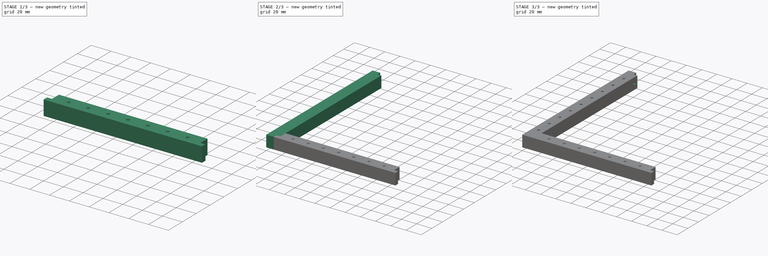
[diagram: build sequence overview — one tinted view per stage of 3, left to right]
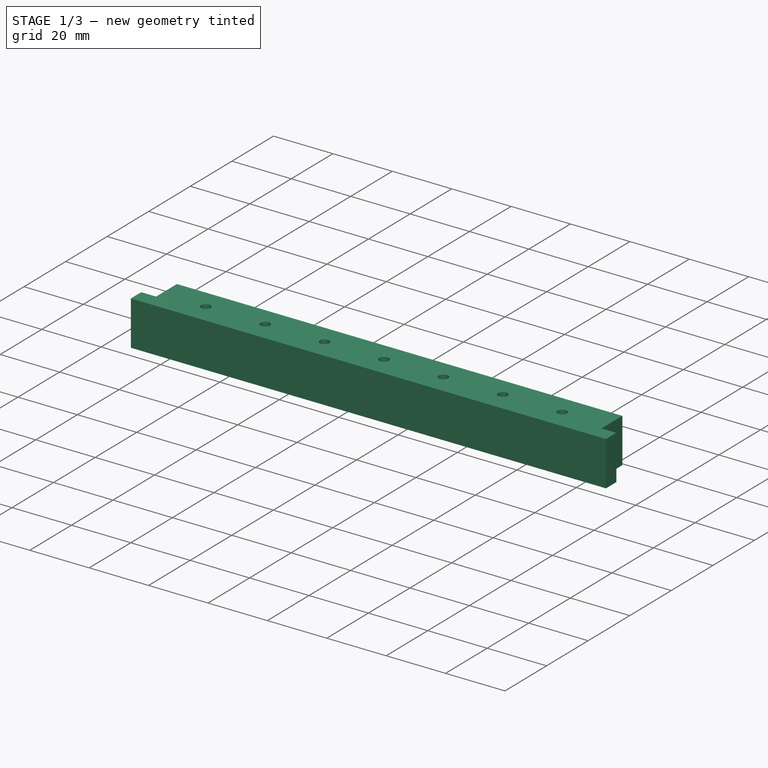
[diagram: stage 1 of 3 — iso view after this stage's code; geometry added in this stage tinted green]
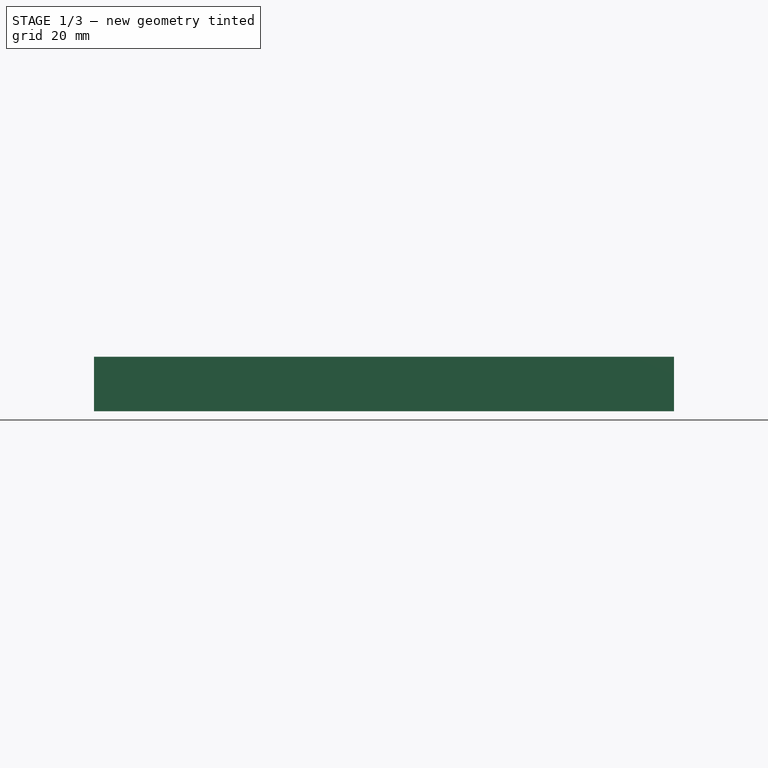
[diagram: stage 1 of 3 — front view after this stage's code; geometry added in this stage tinted green]
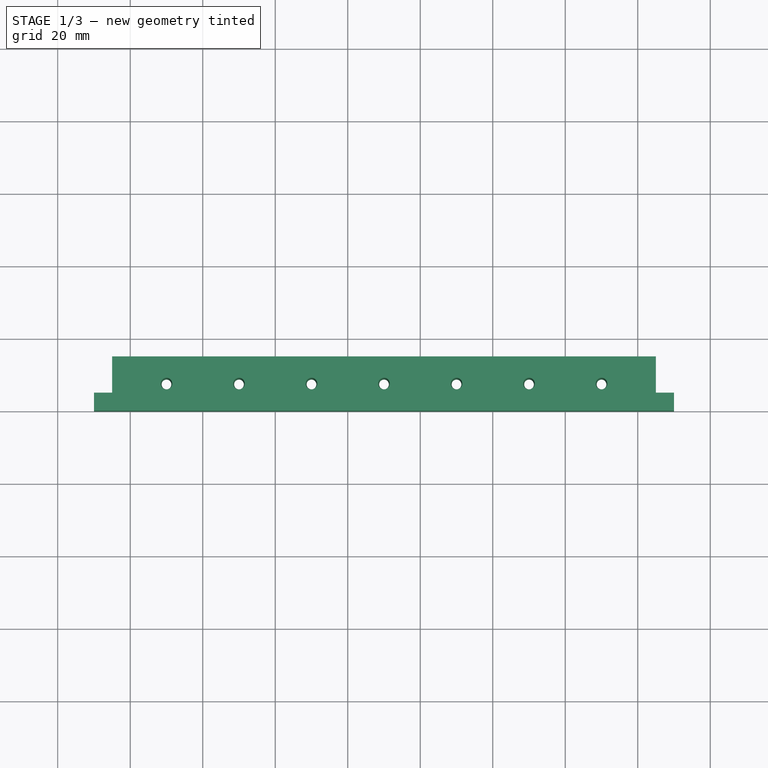
[diagram: stage 1 of 3 — top view after this stage's code; geometry added in this stage tinted green]
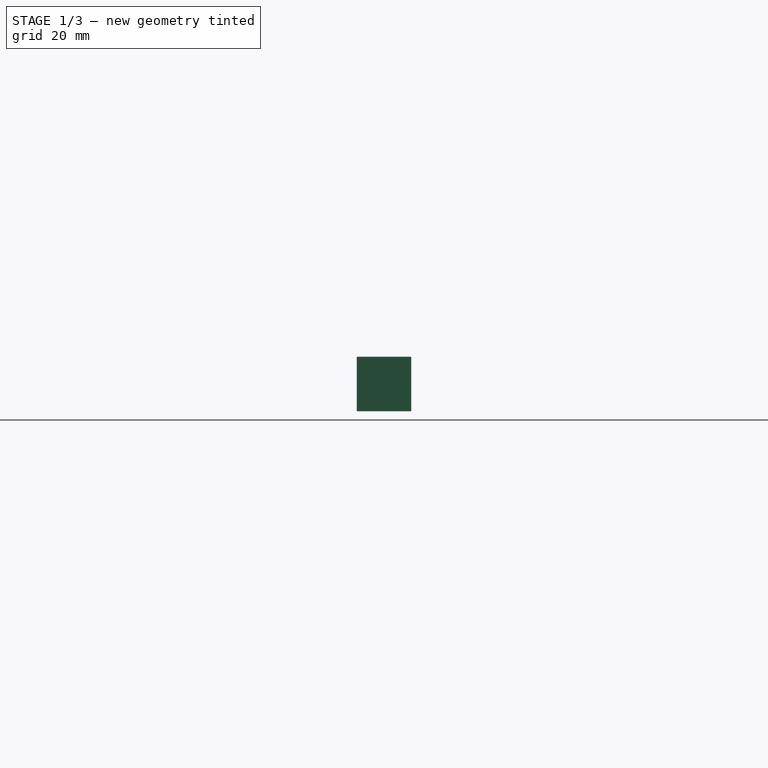
[diagram: stage 1 of 3 — right view after this stage's code; geometry added in this stage tinted green]
FCSTD DOCUMENT  (FreeCAD 1.0R39109 (Git))
Label: Frame
License: All rights reserved
LicenseURL: https://en.wikipedia.org/wiki/All_rights_reserved
objects: Sketcher::SketchObject×7, PartDesign::Hole×5, PartDesign::Pad×2, PartDesign::Body×2
note: 37 computed .brp shape members not serialized (recipe doc carries the construction recipe); baked Part::Feature solids carry a one-line shape summary decoded from their .brp

FEATURE [PartDesign::Body] Body  label="Side_Frame"
  AllowCompound = false
  Group = -> [Sketch,Pad,Sketch001,Hole,Sketch002,Hole001]
  Origin = -> Origin
  Tip = -> Hole001
FEATURE [Sketcher::SketchObject] Sketch003
  ArcFitTolerance = 1e-06
  AttachmentSupport = -> [XY_Plane001]
  FullyConstrained = true
  MakeInternals = false
  MapMode = 5
  sketch-geometry (8):
    g0: LineSegment StartX=10 StartY=-200 StartZ=0 EndX=170 EndY=-200 EndZ=0
    g1: LineSegment StartX=170 StartY=-200 StartZ=0 EndX=170 EndY=-195 EndZ=0
    g2: LineSegment StartX=170 StartY=-195 StartZ=0 EndX=165 EndY=-195 EndZ=0
    g3: LineSegment StartX=165 StartY=-195 StartZ=0 EndX=165 EndY=-185 EndZ=0
    g4: LineSegment StartX=165 StartY=-185 StartZ=0 EndX=15 EndY=-185 EndZ=0
    g5: LineSegment StartX=15 StartY=-185 StartZ=0 EndX=15 EndY=-195 EndZ=0
    g6: LineSegment StartX=15 StartY=-195 StartZ=0 EndX=10 EndY=-195 EndZ=0
    g7: LineSegment StartX=10 StartY=-195 StartZ=0 EndX=10 EndY=-200 EndZ=0
  constraints (24):
    c: Distance(g0) = 160
    c: Horizontal(g0)
    c: Distance(g1) = 5
    c: Vertical(g1)
    c: Coincident(g1,g0)
    c: Distance(g2) = 5
    c: Horizontal(g2)
    c: Coincident(g2,g1)
    c: Distance(g3) = 10
    c: Vertical(g3)
    c: Coincident(g3,g2)
    c: Distance(g4) = 150
    c: Horizontal(g4)
    c: Coincident(g4,g3)
    c: Distance(g5) = 10
    c: Vertical(g5)
    c: Coincident(g5,g4)
    c: Horizontal(g6)
    c: Coincident(g6,g5)
    c: Distance(g0,g-2) = 10
    c: Distance(g0,g-1) = 200
    c: Coincident(g7,g6)
    c: Coincident(g7,g0)
    c: DistanceX(g6,g6) = 5
FEATURE [PartDesign::Pad] Pad001
  Direction = (0,0,1)
  Length = 15
  Length2 = 10
  Profile = -> Sketch003
  ReferenceAxis = -> Sketch003 [N_Axis]
  Refine = true
  Suppressed = false
  Type = 0
FEATURE [Sketcher::SketchObject] Sketch004
  ArcFitTolerance = 1e-06
  AttachmentSupport = -> [Pad001]
  ExternalGeometry = -> [Pad001]
  FullyConstrained = true
  MakeInternals = false
  MapMode = 5
  Placement = pos=(0,0,15) rot=(0,0,1;0rad)
  sketch-geometry (8):
    g0: Circle CenterX=30 CenterY=-192.5 CenterZ=0 NormalX=0 NormalY=0 NormalZ=1 AngleXU=0 Radius=1.5
    g1: Circle CenterX=50 CenterY=-192.5 CenterZ=0 NormalX=0 NormalY=0 NormalZ=1 AngleXU=0 Radius=1.5
    g2: Circle CenterX=70 CenterY=-192.5 CenterZ=0 NormalX=0 NormalY=0 NormalZ=1 AngleXU=0 Radius=1.5
    g3: Circle CenterX=90 CenterY=-192.5 CenterZ=0 NormalX=0 NormalY=0 NormalZ=1 AngleXU=0 Radius=1.5
    g4: Circle CenterX=110 CenterY=-192.5 CenterZ=0 NormalX=0 NormalY=0 NormalZ=1 AngleXU=0 Radius=1.5
    g5: Circle CenterX=130 CenterY=-192.5 CenterZ=0 NormalX=0 NormalY=0 NormalZ=1 AngleXU=0 Radius=1.5
    g6: LineSegment [constr] StartX=30 StartY=-192.5 StartZ=0 EndX=130 EndY=-192.5 EndZ=0
    g7: Circle CenterX=150 CenterY=-192.5 CenterZ=0 NormalX=0 NormalY=0 NormalZ=1 AngleXU=0 Radius=1.5
  constraints (19):
    c: Diameter(g0) = 3
    c: Distance(g0,g-3) = 7.5
    c: Distance(g0,g-4) = 15
    c: Equal(g0, g1-g5) x5
    c: Coincident(g6,g0)
    c: Coincident(g6,g5)
    c: Horizontal(g6)
    c: PointOnObject(g2,g6)
    c: PointOnObject(g3,g6)
    c: PointOnObject(g4,g6)
    c: DistanceX(g0,g1) = 20
    c: DistanceX(g1,g2) = 20
    c: DistanceX(g2,g3) = 20
    c: DistanceX(g3,g4) = 20
    c: DistanceX(g4,g5) = 20
    c: PointOnObject(g1,g6)
    c: Diameter(g7) = 3
    c: DistanceX(g5,g7) = 20
    c: PointOnObject(g7,g6)
FEATURE [PartDesign::Hole] Hole002  label="TopHole002"
  BaseFeature = -> Pad001
  CustomThreadClearance = 0
  Depth = 25
  DepthType = 0
  Diameter = 3.2
  DrillForDepth = false
  DrillPoint = 1
  DrillPointAngle = 118
  HoleCutCountersinkAngle = 90
  HoleCutCustomValues = false
  HoleCutDepth = 0
  HoleCutDiameter = 6.1
  HoleCutType = 0
  ModelThread = false
  Profile = -> Sketch004
  Refine = true
  Suppressed = false
  Tapered = true
  TaperedAngle = 89
  ThreadClass = 0
  ThreadDepth = 25
  ThreadDepthType = 0
  ThreadDirection = 0
  ThreadFit = 1
  ThreadSize = 9
  ThreadType = 1
  Threaded = false
  UseCustomThreadClearance = false
  expr: HoleCutDiameter = 6.1
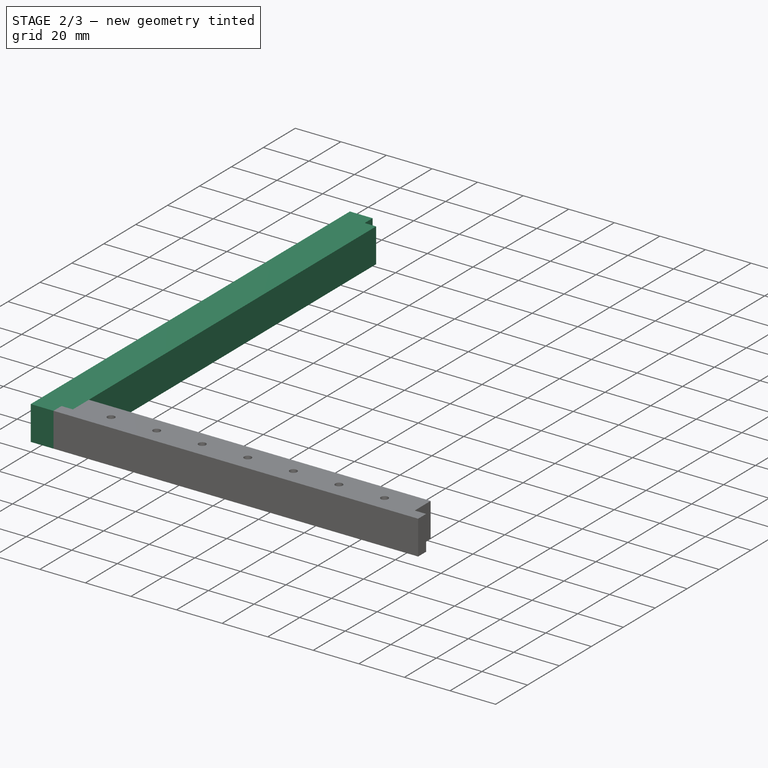
[diagram: stage 2 of 3 — iso view after this stage's code; geometry added in this stage tinted green]
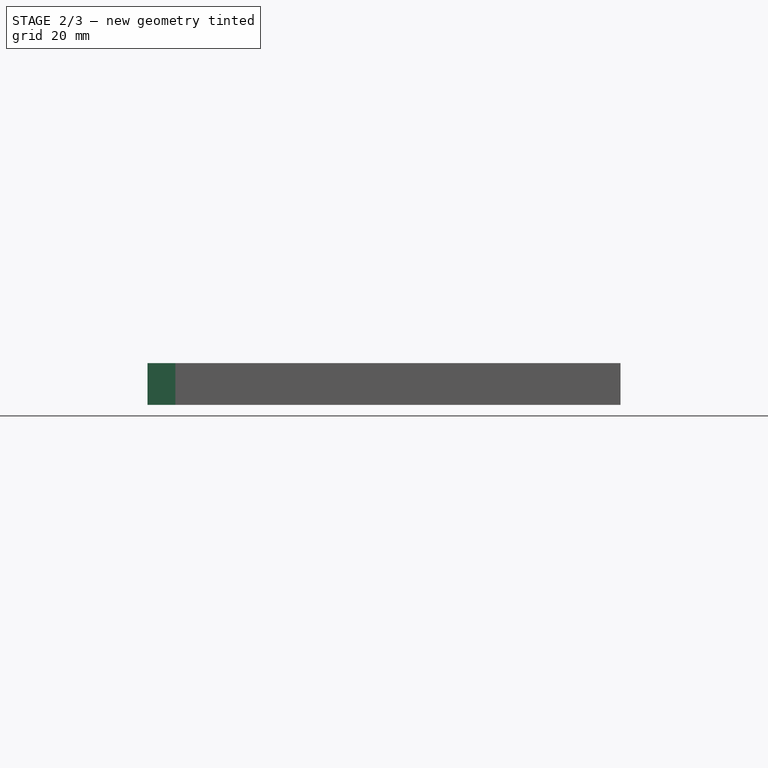
[diagram: stage 2 of 3 — front view after this stage's code; geometry added in this stage tinted green]
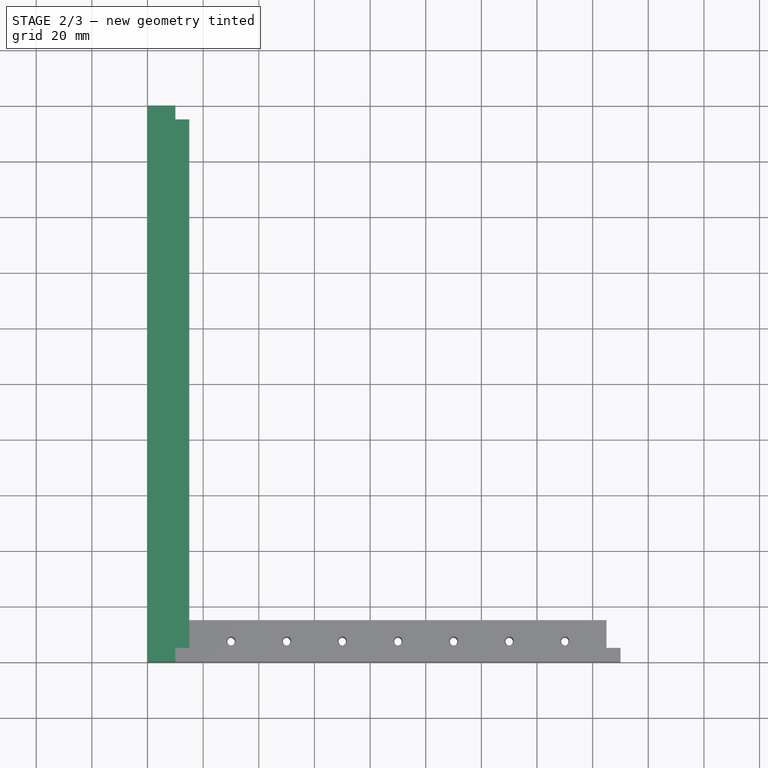
[diagram: stage 2 of 3 — top view after this stage's code; geometry added in this stage tinted green]
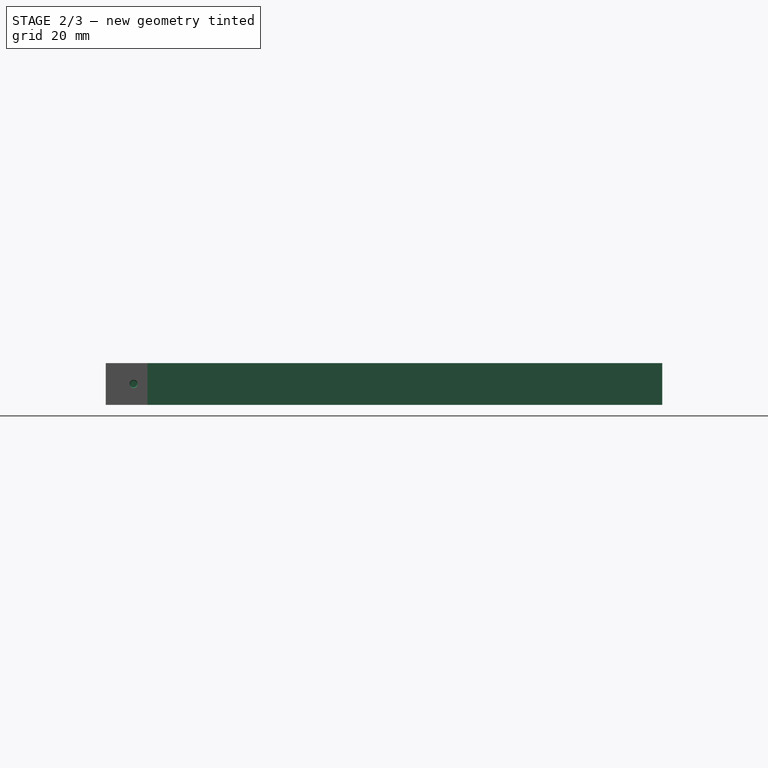
[diagram: stage 2 of 3 — right view after this stage's code; geometry added in this stage tinted green]
FEATURE [Sketcher::SketchObject] Sketch
  ArcFitTolerance = 1e-06
  AttachmentSupport = -> [XY_Plane]
  FullyConstrained = true
  MakeInternals = false
  MapMode = 5
  sketch-geometry (8):
    g0: LineSegment StartX=0 StartY=0 StartZ=0 EndX=0 EndY=-200 EndZ=0
    g1: LineSegment StartX=0 StartY=0 StartZ=0 EndX=10 EndY=0 EndZ=0
    g2: LineSegment StartX=10 StartY=0 StartZ=0 EndX=10 EndY=-5 EndZ=0
    g3: LineSegment StartX=10 StartY=-5 StartZ=0 EndX=15 EndY=-5 EndZ=0
    g4: LineSegment StartX=15 StartY=-5 StartZ=0 EndX=15 EndY=-195 EndZ=0
    g5: LineSegment StartX=15 StartY=-195 StartZ=0 EndX=10 EndY=-195 EndZ=0
    g6: LineSegment StartX=10 StartY=-195 StartZ=0 EndX=10 EndY=-200 EndZ=0
    g7: LineSegment StartX=10 StartY=-200 StartZ=0 EndX=0 EndY=-200 EndZ=0
  constraints (23):
    c: Distance(g0) = 200
    c: Coincident(g0,g-1)
    c: Vertical(g0)
    c: Distance(g1) = 10
    c: Coincident(g1,g0)
    c: PointOnObject(g1,g-1)
    c: Distance(g2) = 5
    c: Coincident(g2,g1)
    c: Vertical(g2)
    c: Distance(g3) = 5
    c: Coincident(g3,g2)
    c: Horizontal(g3)
    c: Distance(g4) = 190
    c: Coincident(g4,g3)
    c: Vertical(g4)
    c: Distance(g5) = 5
    c: Coincident(g5,g4)
    c: Horizontal(g5)
    c: Distance(g6) = 5
    c: Coincident(g6,g5)
    c: Vertical(g6)
    c: Coincident(g7,g6)
    c: Coincident(g7,g0)
FEATURE [PartDesign::Pad] Pad
  Direction = (0,0,1)
  Length = 15
  Length2 = 10
  Profile = -> Sketch
  ReferenceAxis = -> Sketch [N_Axis]
  Refine = true
  Suppressed = false
  Type = 0
FEATURE [Sketcher::SketchObject] Sketch005
  ArcFitTolerance = 1e-06
  AttachmentSupport = -> [Hole002]
  ExternalGeometry = -> [Hole002]
  FullyConstrained = true
  MakeInternals = false
  MapMode = 5
  Placement = pos=(15,0,0) rot=(0.57735,-0.57735,-0.57735;2.0944rad)
  sketch-geometry (1):
    g0: Circle CenterX=190 CenterY=7.5 CenterZ=0 NormalX=0 NormalY=0 NormalZ=1 AngleXU=0 Radius=1.5
  constraints (3):
    c: Diameter(g0) = 3
    c: Distance(g0,g-3) = 7.5
    c: Distance(g0,g-4) = 5
FEATURE [Sketcher::SketchObject] Sketch006
  ArcFitTolerance = 1e-06
  AttachmentSupport = -> [Hole002]
  FullyConstrained = true
  MakeInternals = false
  MapMode = 5
  Placement = pos=(165,0,0) rot=(0.57735,0.57735,0.57735;2.0944rad)
  sketch-geometry (1):
    g0: Circle CenterX=-190 CenterY=7.5 CenterZ=0 NormalX=0 NormalY=0 NormalZ=1 AngleXU=0 Radius=1.5
  constraints (3):
    c: Diameter(g0) = 3
    c: Distance(g0,g-4) = 7.5
    c: Distance(g0,g-3) = 5
FEATURE [PartDesign::Hole] Hole003
  BaseFeature = -> Hole002
  CustomThreadClearance = 0
  Depth = 12
  DepthType = 0
  Diameter = 3
  DrillForDepth = false
  DrillPoint = 1
  DrillPointAngle = 118
  HoleCutCountersinkAngle = 90
  HoleCutCustomValues = false
  HoleCutDepth = 0
  HoleCutDiameter = 6.1
  HoleCutType = 0
  ModelThread = false
  Profile = -> Sketch005
  Refine = true
  Suppressed = false
  Tapered = true
  TaperedAngle = 88.5
  ThreadClass = 0
  ThreadDepth = 12
  ThreadDepthType = 0
  ThreadDirection = 0
  ThreadFit = 1
  ThreadSize = 0
  ThreadType = 0
  Threaded = false
  UseCustomThreadClearance = false
FEATURE [PartDesign::Hole] Hole004
  BaseFeature = -> Hole003
  CustomThreadClearance = 0
  Depth = 12
  DepthType = 0
  Diameter = 3
  DrillForDepth = false
  DrillPoint = 0
  DrillPointAngle = 118
  HoleCutCountersinkAngle = 90
  HoleCutCustomValues = false
  HoleCutDepth = 0
  HoleCutDiameter = 6.3
  HoleCutType = 0
  ModelThread = false
  Profile = -> Sketch006
  Refine = true
  Suppressed = false
  Tapered = true
  TaperedAngle = 88.5
  ThreadClass = 0
  ThreadDepth = 12
  ThreadDepthType = 0
  ThreadDirection = 0
  ThreadFit = 1
  ThreadSize = 0
  ThreadType = 0
  Threaded = false
  UseCustomThreadClearance = false
FEATURE [PartDesign::Body] Body001  label="Body"
  AllowCompound = false
  Group = -> [Sketch003,Pad001,Sketch004,Hole002,Sketch005,Sketch006,Hole003,Hole004]
  Origin = -> Origin001
  Tip = -> Hole004
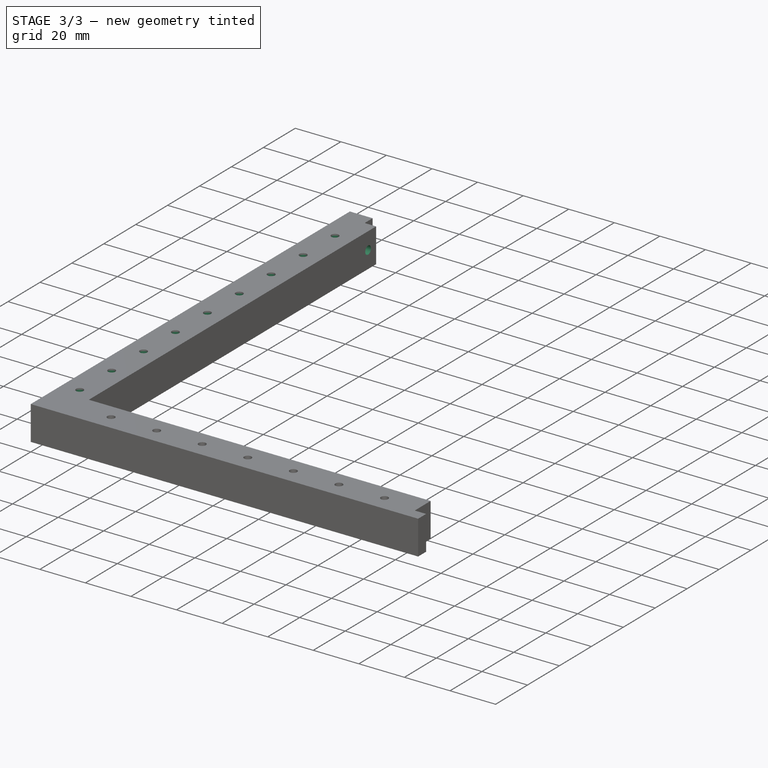
[diagram: stage 3 of 3 — iso view after this stage's code; geometry added in this stage tinted green]
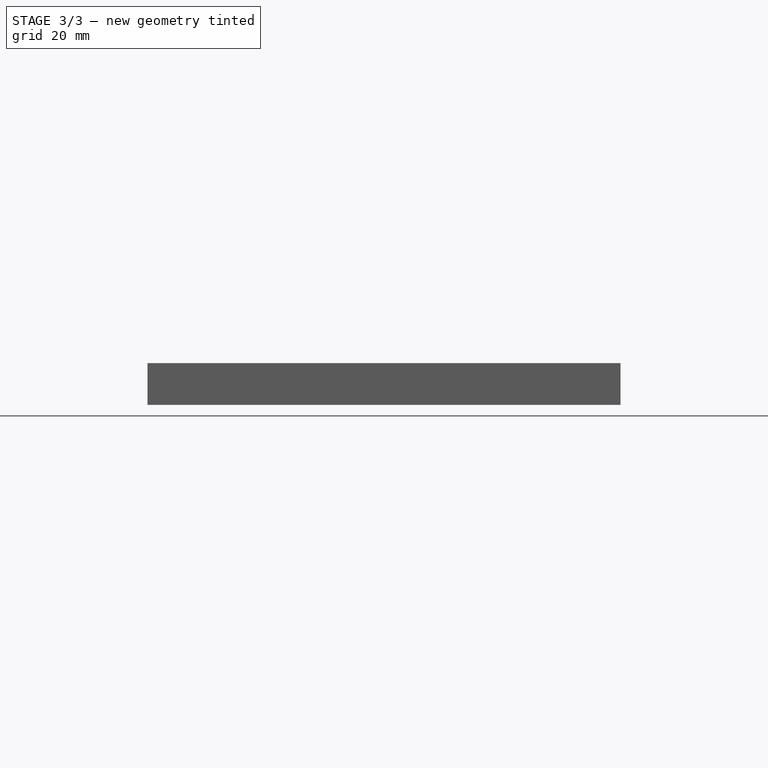
[diagram: stage 3 of 3 — front view after this stage's code; geometry added in this stage tinted green]
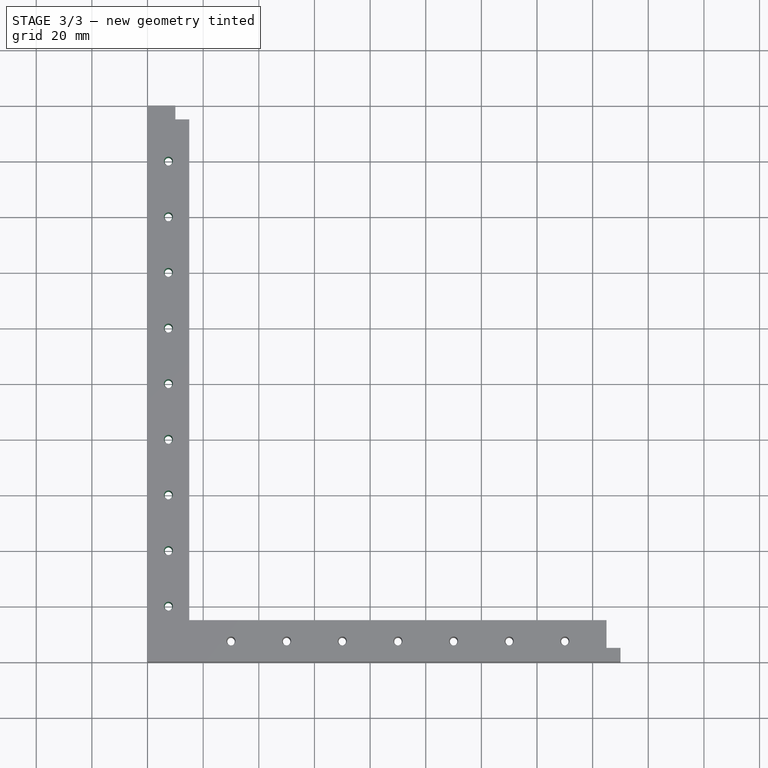
[diagram: stage 3 of 3 — top view after this stage's code; geometry added in this stage tinted green]
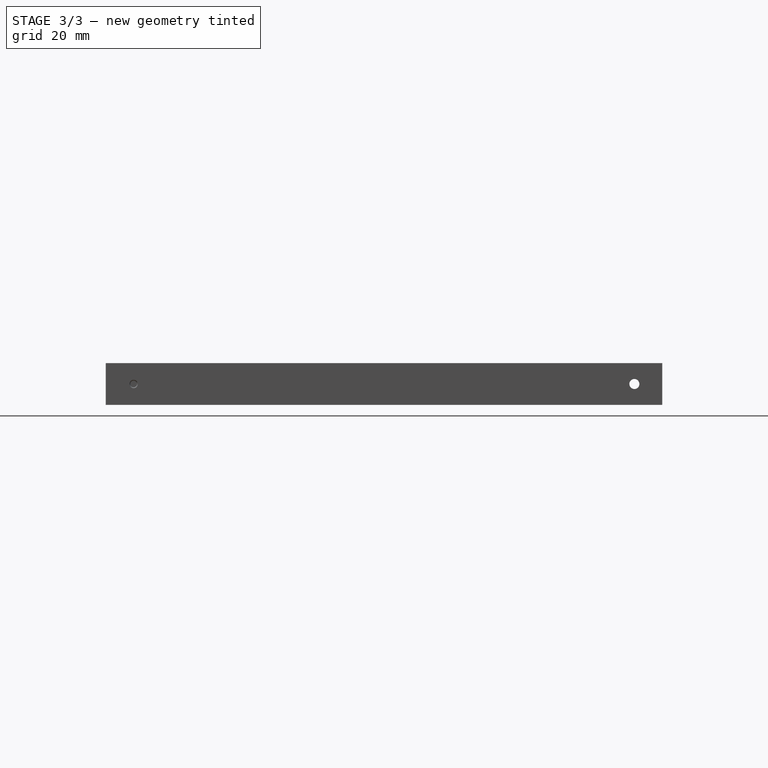
[diagram: stage 3 of 3 — right view after this stage's code; geometry added in this stage tinted green]
FEATURE [Sketcher::SketchObject] Sketch001
  ArcFitTolerance = 1e-06
  AttachmentSupport = -> [Pad]
  FullyConstrained = true
  MakeInternals = false
  MapMode = 5
  Placement = pos=(0,0,15) rot=(0,0,1;0rad)
  sketch-geometry (11):
    g0: LineSegment [constr] StartX=7.5 StartY=0 StartZ=0 EndX=7.5 EndY=-20 EndZ=0
    g1: Circle CenterX=7.5 CenterY=-20 CenterZ=0 NormalX=0 NormalY=0 NormalZ=1 AngleXU=0 Radius=1.6
    g2: Circle CenterX=7.5 CenterY=-40 CenterZ=0 NormalX=0 NormalY=0 NormalZ=1 AngleXU=0 Radius=1.6
    g3: Circle CenterX=7.5 CenterY=-60 CenterZ=0 NormalX=0 NormalY=0 NormalZ=1 AngleXU=0 Radius=1.6
    g4: Circle CenterX=7.5 CenterY=-80 CenterZ=0 NormalX=0 NormalY=0 NormalZ=1 AngleXU=0 Radius=1.6
    g5: Circle CenterX=7.5 CenterY=-100 CenterZ=0 NormalX=0 NormalY=0 NormalZ=1 AngleXU=0 Radius=1.6
    g6: Circle CenterX=7.5 CenterY=-120 CenterZ=0 NormalX=0 NormalY=0 NormalZ=1 AngleXU=0 Radius=1.6
    g7: Circle CenterX=7.5 CenterY=-140 CenterZ=0 NormalX=0 NormalY=0 NormalZ=1 AngleXU=0 Radius=1.6
    g8: Circle CenterX=7.5 CenterY=-160 CenterZ=0 NormalX=0 NormalY=0 NormalZ=1 AngleXU=0 Radius=1.6
    g9: Circle CenterX=7.5 CenterY=-180 CenterZ=0 NormalX=0 NormalY=0 NormalZ=1 AngleXU=0 Radius=1.6
    g10: LineSegment [constr] StartX=7.5 StartY=-20 StartZ=0 EndX=7.5 EndY=-180 EndZ=0
  constraints (32):
    c: Distance(g0) = 20
    c: Vertical(g0)
    c: PointOnObject(g0,g-1)
    c: Diameter(g1) = 3.2
    c: Coincident(g1,g0)
    c: Distance(g-2,g0) = 7.5
    c: Diameter(g2) = 3.2
    c: Diameter(g3) = 3.2
    c: Diameter(g4) = 3.2
    c: Diameter(g5) = 3.2
    c: Diameter(g6) = 3.2
    c: Diameter(g7) = 3.2
    c: Diameter(g8) = 3.2
    c: Diameter(g9) = 3.2
    c: DistanceY(g2,g0) = 20  'screw_offset'
    c: DistanceY(g3,g2) = 20
    c: DistanceY(g4,g3) = 20
    c: DistanceY(g5,g4) = 20
    c: DistanceY(g6,g5) = 20
    c: DistanceY(g7,g6) = 20
    c: DistanceY(g8,g7) = 20
    c: DistanceY(g9,g8) = 20
    c: Coincident(g10,g0)
    c: Coincident(g10,g9)
    c: Vertical(g10)
    c: PointOnObject(g2,g10)
    c: PointOnObject(g3,g10)
    c: PointOnObject(g4,g10)
    c: PointOnObject(g5,g10)
    c: PointOnObject(g6,g10)
    c: PointOnObject(g7,g10)
    c: PointOnObject(g8,g10)
FEATURE [PartDesign::Hole] Hole
  BaseFeature = -> Pad
  CustomThreadClearance = 0
  Depth = 15
  DepthType = 0
  Diameter = 3.2
  DrillForDepth = false
  DrillPoint = 1
  DrillPointAngle = 118
  HoleCutCountersinkAngle = 90
  HoleCutCustomValues = false
  HoleCutDepth = 0
  HoleCutDiameter = 6.1
  HoleCutType = 0
  ModelThread = false
  Profile = -> Sketch001
  Refine = true
  Suppressed = false
  Tapered = true
  TaperedAngle = 89
  ThreadClass = 0
  ThreadDepth = 15
  ThreadDepthType = 0
  ThreadDirection = 0
  ThreadFit = 1
  ThreadSize = 9
  ThreadType = 1
  Threaded = false
  UseCustomThreadClearance = false
FEATURE [Sketcher::SketchObject] Sketch002
  ArcFitTolerance = 1e-06
  AttachmentSupport = -> [Hole]
  ExternalGeometry = -> [Hole]
  FullyConstrained = true
  MakeInternals = false
  MapMode = 5
  Placement = pos=(0,0,0) rot=(0.57735,-0.57735,-0.57735;2.0944rad)
  sketch-geometry (6):
    g0: GeomPoint X=10 Y=7.5 Z=0
    g1: GeomPoint X=190 Y=7.5 Z=0
    g2: LineSegment [constr] StartX=10 StartY=7.5 StartZ=0 EndX=10 EndY=0 EndZ=0
    g3: LineSegment [constr] StartX=10 StartY=7.5 StartZ=0 EndX=10 EndY=15 EndZ=0
    g4: Circle CenterX=10 CenterY=7.5 CenterZ=0 NormalX=0 NormalY=0 NormalZ=1 AngleXU=0 Radius=1.5
    g5: Circle CenterX=190 CenterY=7.5 CenterZ=0 NormalX=0 NormalY=0 NormalZ=1 AngleXU=0 Radius=1.5
  constraints (14):
    c: Horizontal(g1,g0)
    c: Distance(g0,g-2) = 10
    c: Distance(g1,g-3) = 10
    c: Coincident(g2,g0)
    c: PointOnObject(g2,g-1)
    c: Vertical(g2)
    c: Coincident(g3,g0)
    c: PointOnObject(g3,g-4)
    c: Vertical(g3)
    c: Equal(g3,g2)
    c: Diameter(g4) = 3
    c: Coincident(g4,g0)
    c: Diameter(g5) = 3
    c: Coincident(g5,g1)
FEATURE [PartDesign::Hole] Hole001  label="SideHole001"
  BaseFeature = -> Hole
  CustomThreadClearance = 0
  Depth = 15
  DepthType = 0
  Diameter = 3.6
  DrillForDepth = false
  DrillPoint = 1
  DrillPointAngle = 118
  HoleCutCountersinkAngle = 90
  HoleCutCustomValues = false
  HoleCutDepth = 5
  HoleCutDiameter = 6.1
  HoleCutType = 1
  ModelThread = false
  Profile = -> Sketch002
  Refine = true
  Suppressed = false
  Tapered = false
  TaperedAngle = 90
  ThreadClass = 0
  ThreadDepth = 15
  ThreadDepthType = 0
  ThreadDirection = 0
  ThreadFit = 2
  ThreadSize = 9
  ThreadType = 1
  Threaded = false
  UseCustomThreadClearance = false
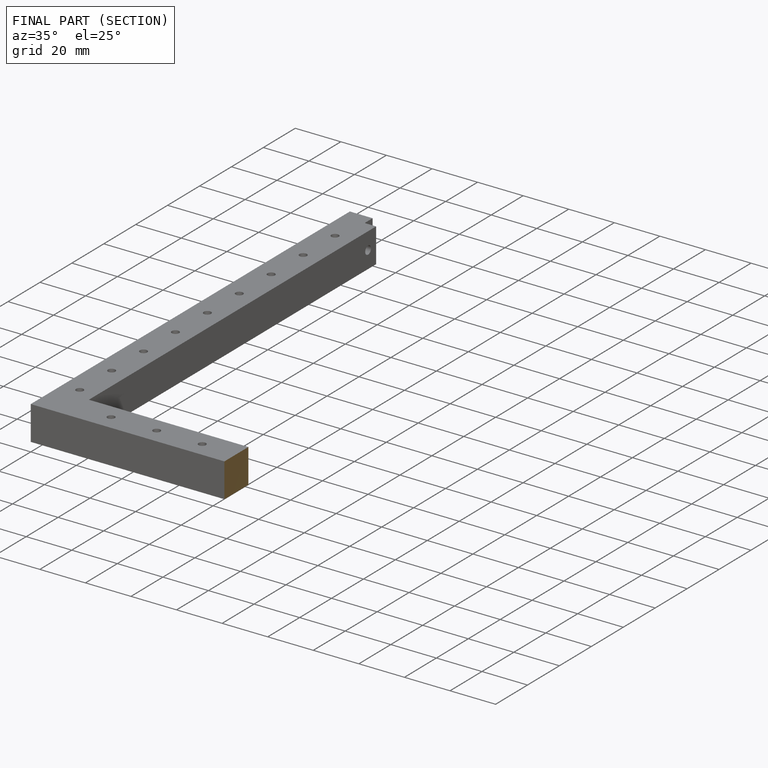
[diagram: finished part — half-section view (interior)]
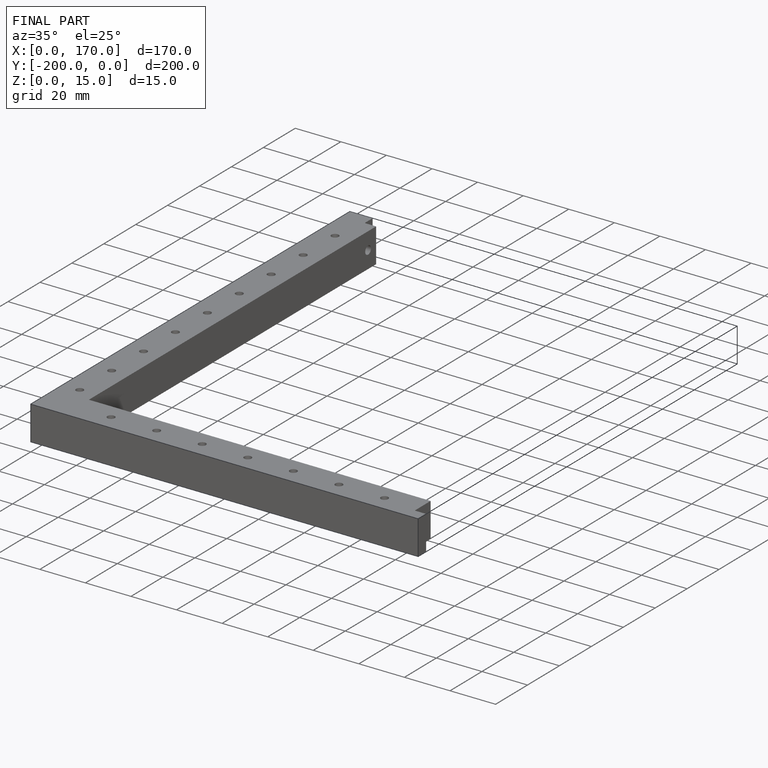
[diagram: finished part — iso view with bounding-box wireframe]
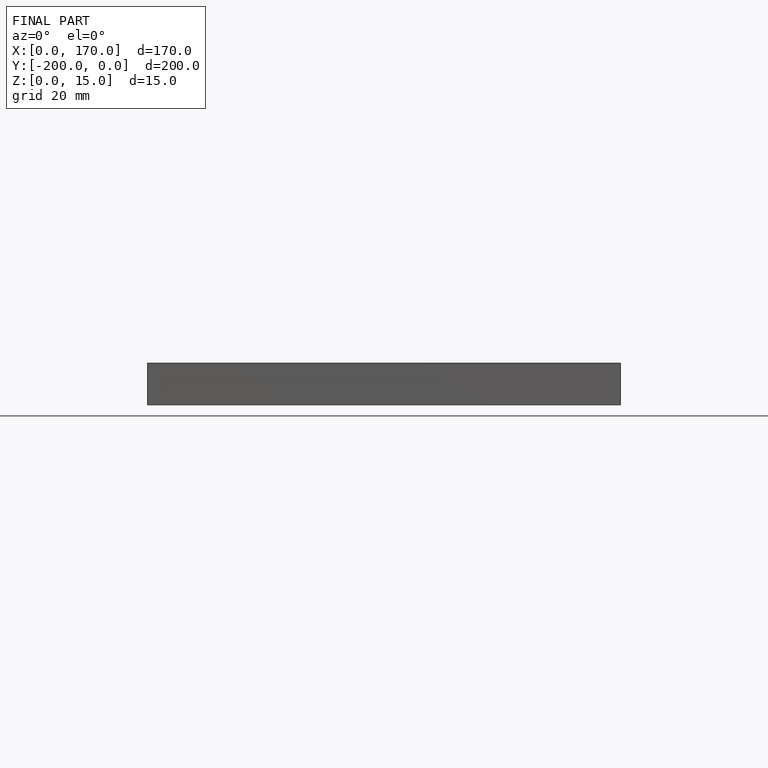
[diagram: finished part — front view with bounding-box wireframe]
